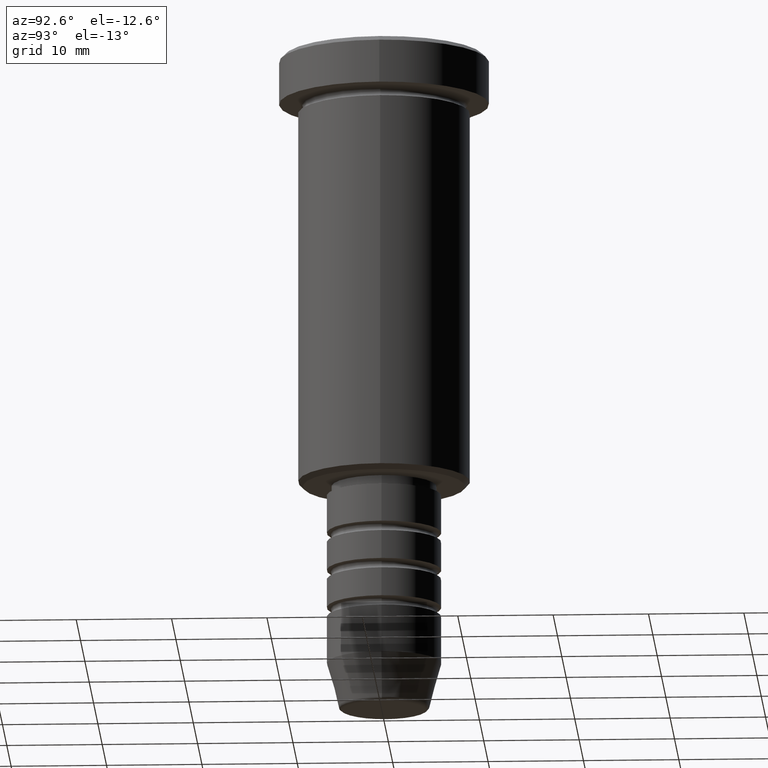
[diagram: clean part render]
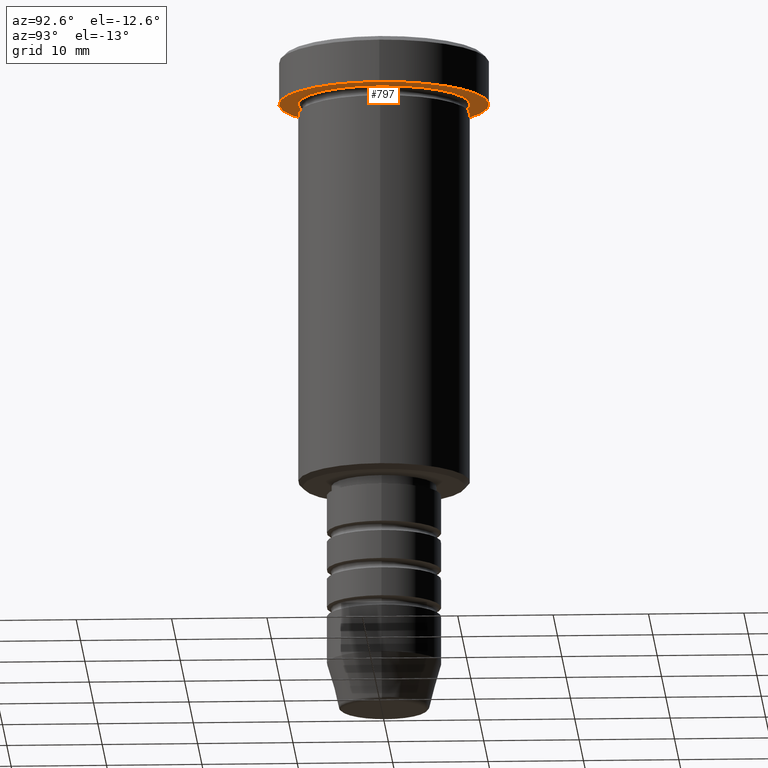
[diagram: same view with one face highlighted and labeled with its STEP entity id]
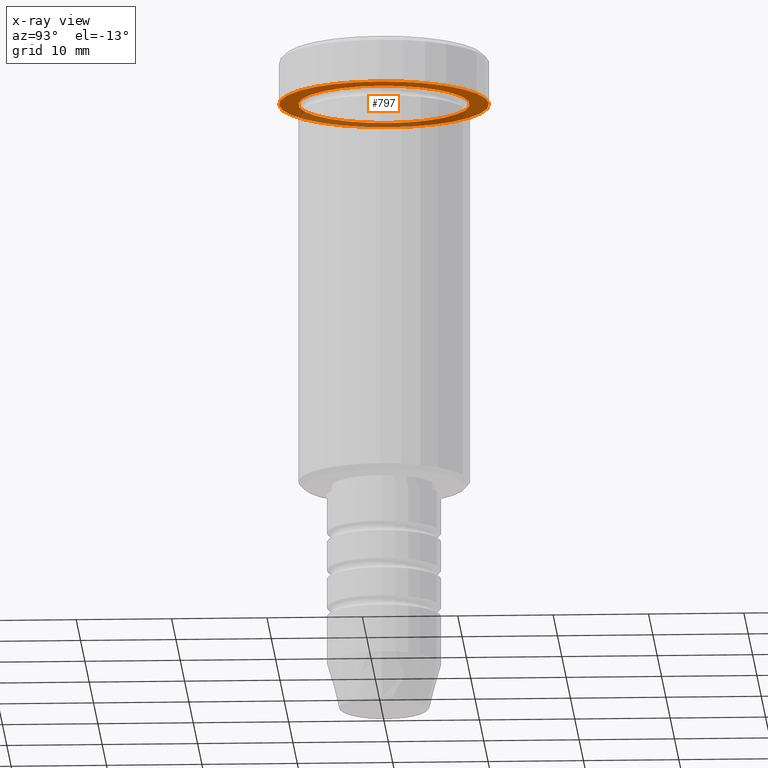
[diagram: x-ray of the same camera — body ghosted, the highlighted face saturated]
A machine part, auxiliary view. The second image highlights one B-rep face of the part: STEP entity #797.
The next image is the same camera in x-ray: the body ghosted, the highlighted face saturated — about 33% of this face is hidden behind the body in this view.
In plain terms, the highlighted planar face has unit normal (0, 0, -1).
Its self-contained STEP definition (entity closure, byte-faithful):
#9 = VERTEX_POINT ( 'NONE', #548 ) ;
#11 = VERTEX_POINT ( 'NONE', #1094 ) ;
#21 = ORIENTED_EDGE ( 'NONE', *, *, #1179, .T. ) ;
#42 = CIRCLE ( 'NONE', #512, 11.00000000000000000 ) ;
#47 = DIRECTION ( 'NONE',  ( -0.000000000000000000, -0.000000000000000000, 1.000000000000000000 ) ) ;
#49 = DIRECTION ( 'NONE',  ( 1.000000000000000000, 0.000000000000000000, 0.000000000000000000 ) ) ;
#121 = DIRECTION ( 'NONE',  ( -0.000000000000000000, -0.000000000000000000, 1.000000000000000000 ) ) ;
#144 = DIRECTION ( 'NONE',  ( 0.000000000000000000, 0.000000000000000000, -1.000000000000000000 ) ) ;
#156 = AXIS2_PLACEMENT_3D ( 'NONE', #1035, #523, #217 ) ;
#175 = ORIENTED_EDGE ( 'NONE', *, *, #645, .F. ) ;
#203 = VERTEX_POINT ( 'NONE', #1065 ) ;
#217 = DIRECTION ( 'NONE',  ( -1.000000000000000000, 0.000000000000000000, 0.000000000000000000 ) ) ;
#237 = DIRECTION ( 'NONE',  ( -0.000000000000000000, -0.000000000000000000, 1.000000000000000000 ) ) ;
#250 = PLANE ( 'NONE',  #983 ) ;
#255 = EDGE_CURVE ( 'NONE', #9, #203, #996, .T. ) ;
#309 = AXIS2_PLACEMENT_3D ( 'NONE', #571, #121, #926 ) ;
#322 = FACE_OUTER_BOUND ( 'NONE', #825, .T. ) ;
#343 = DIRECTION ( 'NONE',  ( -1.000000000000000000, 0.000000000000000000, -0.000000000000000000 ) ) ;
#461 = EDGE_CURVE ( 'NONE', #826, #11, #883, .T. ) ;
#474 = ORIENTED_EDGE ( 'NONE', *, *, #461, .T. ) ;
#488 = AXIS2_PLACEMENT_3D ( 'NONE', #780, #237, #1061 ) ;
#512 = AXIS2_PLACEMENT_3D ( 'NONE', #775, #47, #49 ) ;
#523 = DIRECTION ( 'NONE',  ( -0.000000000000000000, -0.000000000000000000, 1.000000000000000000 ) ) ;
#548 = CARTESIAN_POINT ( 'NONE',  ( 11.00000000000000000, 0.000000000000000000, -5.000000000000000000 ) ) ;
#571 = CARTESIAN_POINT ( 'NONE',  ( 0.000000000000000000, 0.000000000000000000, -5.000000000000000000 ) ) ;
#645 = EDGE_CURVE ( 'NONE', #203, #9, #42, .T. ) ;
#709 = CARTESIAN_POINT ( 'NONE',  ( 0.000000000000000000, 11.00000000000000000, -5.000000000000000000 ) ) ;
#724 = EDGE_LOOP ( 'NONE', ( #21, #474 ) ) ;
#775 = CARTESIAN_POINT ( 'NONE',  ( 0.000000000000000000, 0.000000000000000000, -5.000000000000000000 ) ) ;
#780 = CARTESIAN_POINT ( 'NONE',  ( 0.000000000000000000, 0.000000000000000000, -5.000000000000000000 ) ) ;
#781 = FACE_BOUND ( 'NONE', #724, .T. ) ;
#789 = CIRCLE ( 'NONE', #156, 9.000000000000000000 ) ;
#797 = ADVANCED_FACE ( 'NONE', ( #781, #322 ), #250, .T. ) ;
#825 = EDGE_LOOP ( 'NONE', ( #952, #175 ) ) ;
#826 = VERTEX_POINT ( 'NONE', #1140 ) ;
#883 = CIRCLE ( 'NONE', #309, 9.000000000000000000 ) ;
#926 = DIRECTION ( 'NONE',  ( -1.000000000000000000, 0.000000000000000000, 0.000000000000000000 ) ) ;
#952 = ORIENTED_EDGE ( 'NONE', *, *, #255, .F. ) ;
#983 = AXIS2_PLACEMENT_3D ( 'NONE', #709, #144, #343 ) ;
#996 = CIRCLE ( 'NONE', #488, 11.00000000000000000 ) ;
#1035 = CARTESIAN_POINT ( 'NONE',  ( 0.000000000000000000, 0.000000000000000000, -5.000000000000000000 ) ) ;
#1061 = DIRECTION ( 'NONE',  ( 1.000000000000000000, 0.000000000000000000, 0.000000000000000000 ) ) ;
#1065 = CARTESIAN_POINT ( 'NONE',  ( -11.00000000000000000, 1.347111479062088602E-15, -5.000000000000000000 ) ) ;
#1094 = CARTESIAN_POINT ( 'NONE',  ( -9.000000000000000000, 0.000000000000000000, -4.999999999999999112 ) ) ;
#1140 = CARTESIAN_POINT ( 'NONE',  ( 9.000000000000000000, 1.102182119232617714E-15, -4.999999999999999112 ) ) ;
#1179 = EDGE_CURVE ( 'NONE', #11, #826, #789, .T. ) ;